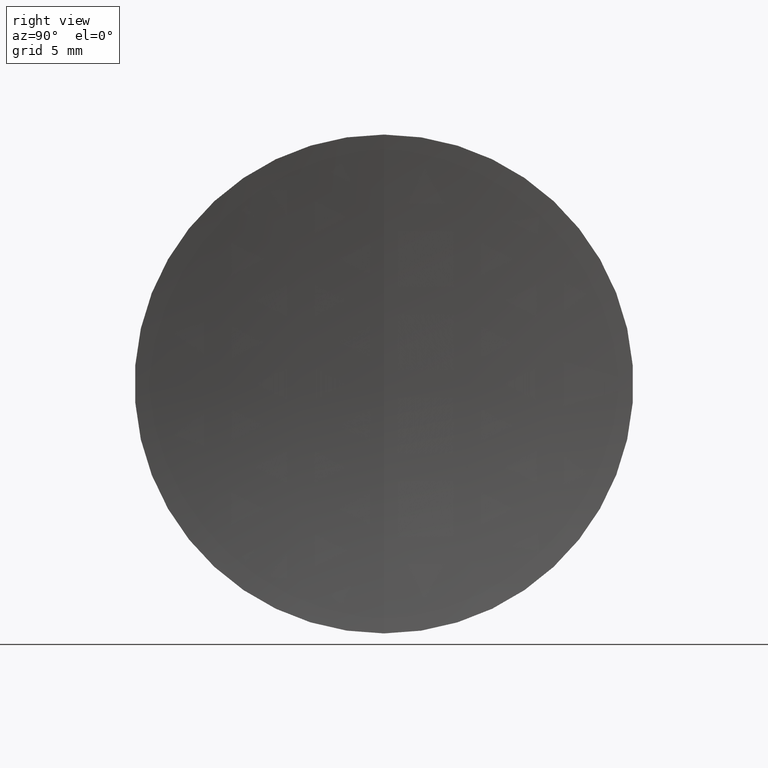
[diagram: clean part render]
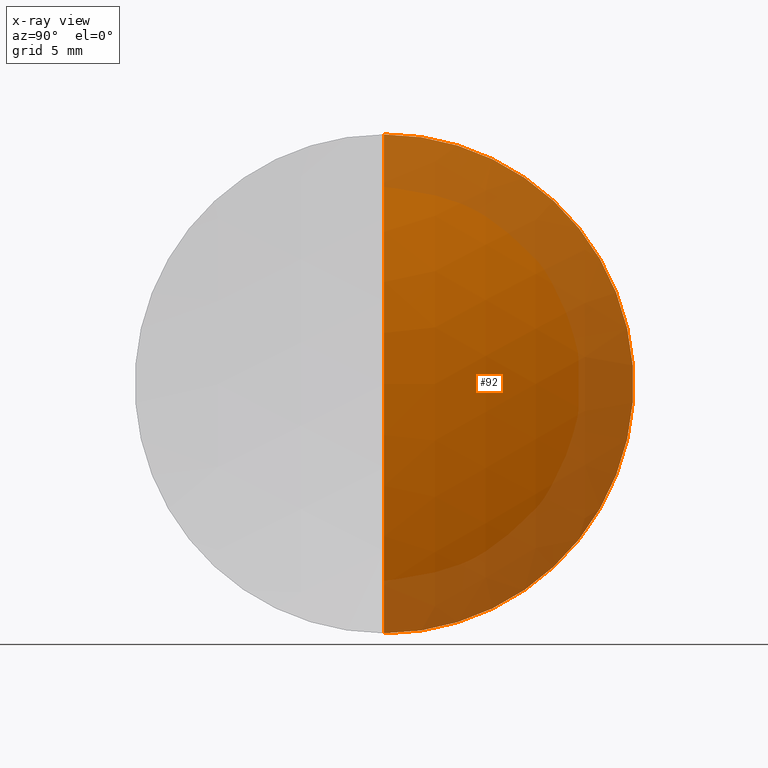
[diagram: x-ray — body ghosted, one internal face saturated and labeled with its STEP entity id]
A machine part, right view, then the same camera in x-ray: the body is ghosted and one INTERNAL B-rep face — a face not visible from any outside direction — is saturated and labeled: STEP entity #92.
In plain terms, the highlighted spherical surface has radius 39.17 mm.
Its self-contained STEP definition (entity closure, byte-faithful):
#14 = DIRECTION ( 'NONE',  ( -1.000000000000000000, -0.0000000000000000000, -0.0000000000000000000 ) ) ;
#34 = ORIENTED_EDGE ( 'NONE', *, *, #229, .F. ) ;
#36 = CIRCLE ( 'NONE', #133, 39.17000000000000900 ) ;
#47 = DIRECTION ( 'NONE',  ( 0.0000000000000000000, -1.000000000000000000, 0.0000000000000000000 ) ) ;
#54 = AXIS2_PLACEMENT_3D ( 'NONE', #175, #108, #256 ) ;
#55 = CARTESIAN_POINT ( 'NONE',  ( 103.3848838390490400, 0.0000000000000000000, 1.097338595122337000E-015 ) ) ;
#77 = DIRECTION ( 'NONE',  ( -0.0000000000000000000, 1.000000000000000000, 1.224646799147353200E-016 ) ) ;
#92 = ADVANCED_FACE ( 'NONE', ( #186 ), #346, .T. ) ;
#96 = CARTESIAN_POINT ( 'NONE',  ( 100.3989811747571700, 0.0000000000000000000, 0.0000000000000000000 ) ) ;
#108 = DIRECTION ( 'NONE',  ( 0.0000000000000000000, 1.000000000000000000, 0.0000000000000000000 ) ) ;
#130 = AXIS2_PLACEMENT_3D ( 'NONE', #185, #77, #171 ) ;
#133 = AXIS2_PLACEMENT_3D ( 'NONE', #220, #47, #274 ) ;
#157 = ORIENTED_EDGE ( 'NONE', *, *, #166, .T. ) ;
#166 = EDGE_CURVE ( 'NONE', #299, #250, #326, .T. ) ;
#171 = DIRECTION ( 'NONE',  ( 0.0000000000000000000, -1.224646799147353200E-016, 1.000000000000000000 ) ) ;
#175 = CARTESIAN_POINT ( 'NONE',  ( 64.21488383904902300, 0.0000000000000000000, -1.301132161007754700E-015 ) ) ;
#176 = VERTEX_POINT ( 'NONE', #315 ) ;
#177 = CIRCLE ( 'NONE', #316, 14.99999999999999800 ) ;
#185 = CARTESIAN_POINT ( 'NONE',  ( 64.21488383904902300, 0.0000000000000000000, -1.301132161007754700E-015 ) ) ;
#186 = FACE_OUTER_BOUND ( 'NONE', #272, .T. ) ;
#202 = CARTESIAN_POINT ( 'NONE',  ( 100.3989811747571700, 1.836970198721029600E-015, -15.00000000000000000 ) ) ;
#220 = CARTESIAN_POINT ( 'NONE',  ( 64.21488383904902300, 0.0000000000000000000, -1.301132161007754700E-015 ) ) ;
#225 = DIRECTION ( 'NONE',  ( 0.0000000000000000000, 0.0000000000000000000, 1.000000000000000000 ) ) ;
#229 = EDGE_CURVE ( 'NONE', #176, #250, #177, .T. ) ;
#250 = VERTEX_POINT ( 'NONE', #202 ) ;
#256 = DIRECTION ( 'NONE',  ( 0.0000000000000000000, 0.0000000000000000000, 1.000000000000000000 ) ) ;
#272 = EDGE_LOOP ( 'NONE', ( #288, #157, #34 ) ) ;
#274 = DIRECTION ( 'NONE',  ( 0.0000000000000000000, 0.0000000000000000000, -1.000000000000000000 ) ) ;
#288 = ORIENTED_EDGE ( 'NONE', *, *, #333, .F. ) ;
#299 = VERTEX_POINT ( 'NONE', #55 ) ;
#315 = CARTESIAN_POINT ( 'NONE',  ( 100.3989811747571700, 0.0000000000000000000, 14.99999999999999800 ) ) ;
#316 = AXIS2_PLACEMENT_3D ( 'NONE', #96, #14, #225 ) ;
#326 = CIRCLE ( 'NONE', #130, 39.17000000000000900 ) ;
#333 = EDGE_CURVE ( 'NONE', #299, #176, #36, .T. ) ;
#346 = SPHERICAL_SURFACE ( 'NONE', #54, 39.17000000000000900 ) ;